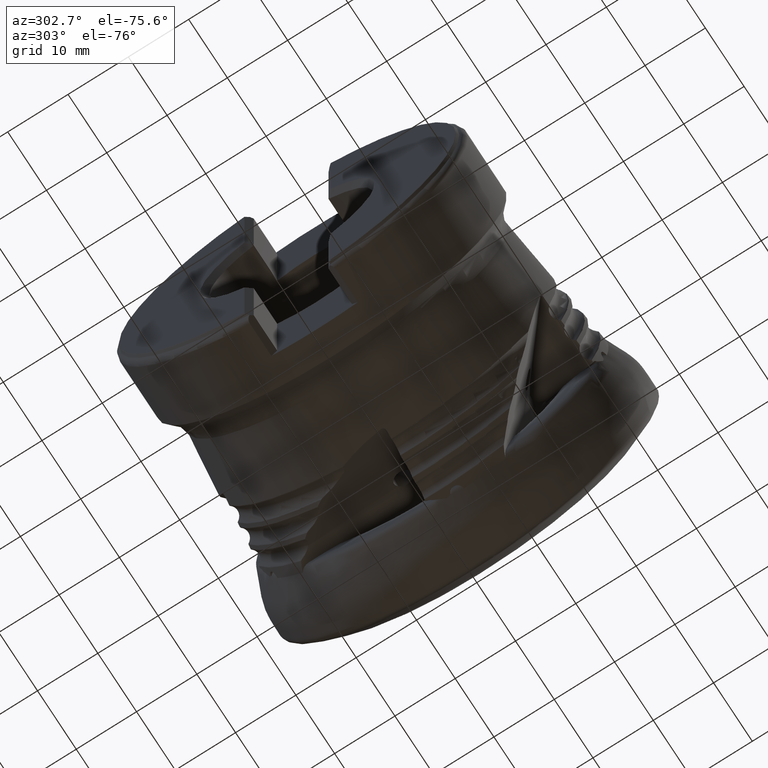
[diagram: clean part render]
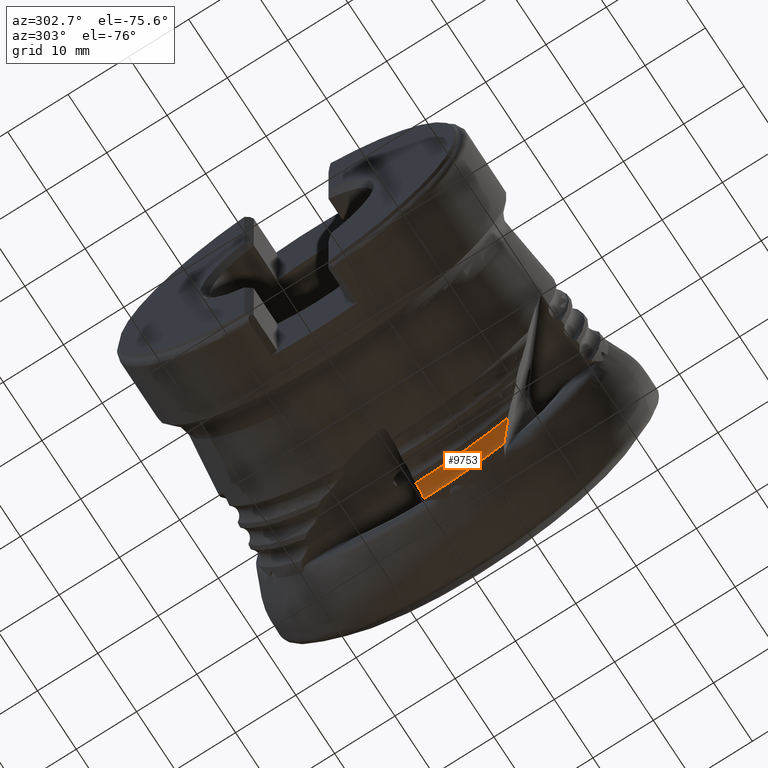
[diagram: same view with one face highlighted and labeled with its STEP entity id]
A machine part, auxiliary view. The second image highlights one B-rep face of the part: STEP entity #9753.
In plain terms, the highlighted toroidal blend (fillet) surface has major radius 29.5836 mm and minor (blend) radius 1.5 mm.
Its self-contained STEP definition (entity closure, byte-faithful):
#58 = CARTESIAN_POINT ( 'NONE',  ( -15.56055790327971900, 0.07473239553583258000, -28.43153452595555900 ) ) ;
#106 = CARTESIAN_POINT ( 'NONE',  ( -13.37317353910212200, 0.2276892106178264000, -28.67436924357851400 ) ) ;
#129 = CARTESIAN_POINT ( 'NONE',  ( -13.25971844914864700, -13.00043616235104500, -25.80490077274474500 ) ) ;
#169 = CARTESIAN_POINT ( 'NONE',  ( -15.54556851488720400, -15.11032708947998600, -24.06933971109963000 ) ) ;
#289 = CARTESIAN_POINT ( 'NONE',  ( -14.05929468738462200, -13.76346153977746100, -24.58516093608821900 ) ) ;
#448 = DIRECTION ( 'NONE',  ( 1.000000000000000000, -0.0000000000000000000, -0.0000000000000000000 ) ) ;
#775 = VERTEX_POINT ( 'NONE', #5436 ) ;
#1077 = CARTESIAN_POINT ( 'NONE',  ( -15.73091924072487700, 0.06281957032986372500, -28.60721585309089200 ) ) ;
#1123 = CARTESIAN_POINT ( 'NONE',  ( -15.36178085584721300, 0.08863224075032787000, -28.29020920695858300 ) ) ;
#1243 = CARTESIAN_POINT ( 'NONE',  ( -15.73091924072486600, -15.23812431504159900, -24.21107830153560800 ) ) ;
#1337 = CARTESIAN_POINT ( 'NONE',  ( -14.45096424268653300, -14.13085485048932800, -24.27039257191721700 ) ) ;
#1494 = DIRECTION ( 'NONE',  ( 0.0000000000000000000, 0.0000000000000000000, -1.000000000000000000 ) ) ;
#1540 = VERTEX_POINT ( 'NONE', #129 ) ;
#1858 = ORIENTED_EDGE ( 'NONE', *, *, #5261, .T. ) ;
#2160 = CARTESIAN_POINT ( 'NONE',  ( -15.02596670741096900, 0.1121146535559936200, -28.14236021180422800 ) ) ;
#3212 = CARTESIAN_POINT ( 'NONE',  ( -14.66368016556451400, 0.1374481964373499000, -28.08001116623751200 ) ) ;
#3275 = CARTESIAN_POINT ( 'NONE',  ( -14.58857736291004900, -14.26583854853759300, -24.19040678867379100 ) ) ;
#3671 = AXIS2_PLACEMENT_3D ( 'NONE', #6068, #13693, #7165 ) ;
#4245 = DIRECTION ( 'NONE',  ( 1.000000000000000000, -0.0000000000000000000, -0.0000000000000000000 ) ) ;
#4250 = CARTESIAN_POINT ( 'NONE',  ( -14.29861882600513400, 0.1629757720765597800, -28.10705225787635100 ) ) ;
#4331 = CARTESIAN_POINT ( 'NONE',  ( -14.76288378103488700, -14.43488012949876500, -24.09802770866434300 ) ) ;
#4358 = EDGE_CURVE ( 'NONE', #1540, #13453, #11352, .T. ) ;
#4690 = FACE_OUTER_BOUND ( 'NONE', #12256, .T. ) ;
#4911 = EDGE_CURVE ( 'NONE', #7333, #10444, #12230, .T. ) ;
#5070 = B_SPLINE_CURVE_WITH_KNOTS ( 'NONE', 3,
 ( #3275, #9727, #4331, #11936, #5396, #13023, #6490, #169, #7586, #1243 ),
 .UNSPECIFIED., .F., .F.,
 ( 4, 2, 2, 2, 4 ),
 ( 0.0002946734953966986100, 0.0006839147148353718700, 0.001073155934274045200, 0.001462397153712718400, 0.001851638373151391600 ),
 .UNSPECIFIED. ) ;
#5261 = EDGE_CURVE ( 'NONE', #13453, #775, #5070, .T. ) ;
#5328 = CARTESIAN_POINT ( 'NONE',  ( -13.95120504300901300, 0.1872693103467092900, -28.22139269911792400 ) ) ;
#5396 = CARTESIAN_POINT ( 'NONE',  ( -15.04382116331153600, -14.69421837658268400, -24.00970538992618600 ) ) ;
#5430 = EDGE_CURVE ( 'NONE', #775, #7333, #12438, .T. ) ;
#5436 = CARTESIAN_POINT ( 'NONE',  ( -15.73091924072486600, -15.23812431504159900, -24.21107830153560800 ) ) ;
#5512 = CARTESIAN_POINT ( 'NONE',  ( -13.59798341822701000, -13.34019789714093400, -25.13130425552564500 ) ) ;
#6068 = CARTESIAN_POINT ( 'NONE',  ( -13.25971844914842600, 0.0000000000000000000, 0.0000000000000000000 ) ) ;
#6322 = CIRCLE ( 'NONE', #3671, 28.89470962481823000 ) ;
#6418 = CARTESIAN_POINT ( 'NONE',  ( -13.53998262627694000, 0.2160247829484851200, -28.48632509959879000 ) ) ;
#6474 = CARTESIAN_POINT ( 'NONE',  ( -13.25971844914862200, 0.2356227633570386900, -28.89374891245435300 ) ) ;
#6490 = CARTESIAN_POINT ( 'NONE',  ( -15.34555802815860100, -14.95339318982283000, -24.00428188426010900 ) ) ;
#6606 = CARTESIAN_POINT ( 'NONE',  ( -13.93645120841134700, -13.65113144098165200, -24.70791163708811300 ) ) ;
#7165 = DIRECTION ( 'NONE',  ( 0.0000000000000000000, 0.0000000000000000000, 1.000000000000000000 ) ) ;
#7333 = VERTEX_POINT ( 'NONE', #1077 ) ;
#7458 = CARTESIAN_POINT ( 'NONE',  ( -15.65058963378114100, 0.06843676364811297800, -28.51351001430754200 ) ) ;
#7505 = CARTESIAN_POINT ( 'NONE',  ( -13.25971844914862200, 0.2356227633570386900, -28.89374891245435300 ) ) ;
#7586 = CARTESIAN_POINT ( 'NONE',  ( -15.64399083039657200, -15.18209911712710400, -24.12653974094103800 ) ) ;
#7698 = CARTESIAN_POINT ( 'NONE',  ( -14.31613983948799200, -14.00293003710463500, -24.36664985784927100 ) ) ;
#8470 = CARTESIAN_POINT ( 'NONE',  ( -15.73091924072487700, 0.06281957032986372500, -28.60721585309089200 ) ) ;
#8567 = CARTESIAN_POINT ( 'NONE',  ( -15.25233690603159400, 0.09628530724743783500, -28.23107220978100100 ) ) ;
#8707 = CARTESIAN_POINT ( 'NONE',  ( -13.32671211212901200, -13.07631729227970400, -25.62158261019847300 ) ) ;
#8799 = CARTESIAN_POINT ( 'NONE',  ( -14.58857736291004900, -14.26583854853759300, -24.19040678867379100 ) ) ;
#8892 = ORIENTED_EDGE ( 'NONE', *, *, #4911, .T. ) ;
#8975 = CARTESIAN_POINT ( 'NONE',  ( -14.58857736291004900, -14.26583854853759300, -24.19040678867379100 ) ) ;
#9654 = CARTESIAN_POINT ( 'NONE',  ( -14.90615834749979900, 0.1204924702087605300, -28.11150962997683000 ) ) ;
#9727 = CARTESIAN_POINT ( 'NONE',  ( -14.67439188329756700, -14.35001338077257500, -24.14052824790886100 ) ) ;
#9753 = ADVANCED_FACE ( 'NONE', ( #4690 ), #13370, .F. ) ;
#10303 = ORIENTED_EDGE ( 'NONE', *, *, #4358, .T. ) ;
#10444 = VERTEX_POINT ( 'NONE', #6474 ) ;
#10751 = CARTESIAN_POINT ( 'NONE',  ( -15.73091924072488400, 0.0000000000000000000, 0.0000000000000000000 ) ) ;
#10757 = CARTESIAN_POINT ( 'NONE',  ( -14.54217313492518400, 0.1459447957186787400, -28.07907140320592300 ) ) ;
#10762 = ORIENTED_EDGE ( 'NONE', *, *, #13686, .T. ) ;
#10953 = CARTESIAN_POINT ( 'NONE',  ( -13.25971844914864700, -13.00043616235104500, -25.80490077274474500 ) ) ;
#11352 = B_SPLINE_CURVE_WITH_KNOTS ( 'NONE', 3,
 ( #10953, #8707, #12055, #5512, #13123, #6606, #289, #7698, #1337, #8799 ),
 .UNSPECIFIED., .F., .F.,
 ( 4, 2, 2, 2, 4 ),
 ( 6.164340467563082900E-007, 0.0006199291021021727100, 0.001239241770157589300, 0.001858554438213005700, 0.002477867106268421900 ),
 .UNSPECIFIED. ) ;
#11490 = AXIS2_PLACEMENT_3D ( 'NONE', #12216, #448, #1494 ) ;
#11865 = DIRECTION ( 'NONE',  ( 0.0000000000000000000, 0.0000000000000000000, -1.000000000000000000 ) ) ;
#11870 = CARTESIAN_POINT ( 'NONE',  ( -14.17897787077062300, 0.1713418826539839200, -28.13600640012193600 ) ) ;
#11896 = ORIENTED_EDGE ( 'NONE', *, *, #5430, .T. ) ;
#11936 = CARTESIAN_POINT ( 'NONE',  ( -14.94703158367438100, -14.60646502630687800, -24.03276835831041000 ) ) ;
#12055 = CARTESIAN_POINT ( 'NONE',  ( -13.40919753706903700, -13.15925698742062600, -25.45090497510636100 ) ) ;
#12216 = CARTESIAN_POINT ( 'NONE',  ( -14.59216096217220500, 0.0000000000000000000, 0.0000000000000000000 ) ) ;
#12230 = B_SPLINE_CURVE_WITH_KNOTS ( 'NONE', 3,
 ( #8470, #7458, #58, #1123, #8567, #2160, #9654, #3212, #10757, #4250, #11870, #5328, #12941, #6418, #106, #7505 ),
 .UNSPECIFIED., .F., .F.,
 ( 4, 2, 2, 2, 2, 2, 2, 4 ),
 ( 3.032796227799565200E-007, 0.0003657010842329621500, 0.0007310988888431443900, 0.001096496693453326400, 0.001461894498063508700, 0.001827292302673690900, 0.002192690107283872900, 0.002923485716504237400 ),
 .UNSPECIFIED. ) ;
#12256 = EDGE_LOOP ( 'NONE', ( #10303, #1858, #11896, #8892, #10762 ) ) ;
#12438 = CIRCLE ( 'NONE', #13673, 28.60728482683651900 ) ;
#12941 = CARTESIAN_POINT ( 'NONE',  ( -13.84078516411996400, 0.1949906204526076800, -28.27900391817718500 ) ) ;
#13023 = CARTESIAN_POINT ( 'NONE',  ( -15.24266380748265300, -14.86735067683788700, -23.99533359066619900 ) ) ;
#13123 = CARTESIAN_POINT ( 'NONE',  ( -13.70516208307502400, -13.43893589319777600, -24.98154697228862300 ) ) ;
#13370 = TOROIDAL_SURFACE ( 'NONE', #11490, 29.58361959679392000, 1.500000000000002400 ) ;
#13453 = VERTEX_POINT ( 'NONE', #8975 ) ;
#13673 = AXIS2_PLACEMENT_3D ( 'NONE', #10751, #4245, #11865 ) ;
#13686 = EDGE_CURVE ( 'NONE', #10444, #1540, #6322, .T. ) ;
#13693 = DIRECTION ( 'NONE',  ( -1.000000000000000000, 0.0000000000000000000, 0.0000000000000000000 ) ) ;